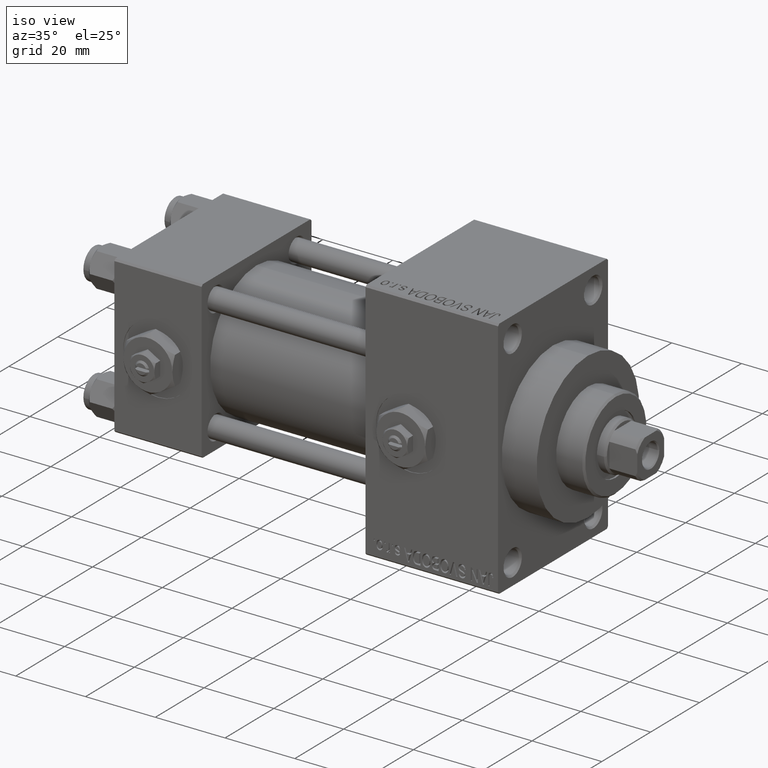
[diagram: clean part render]
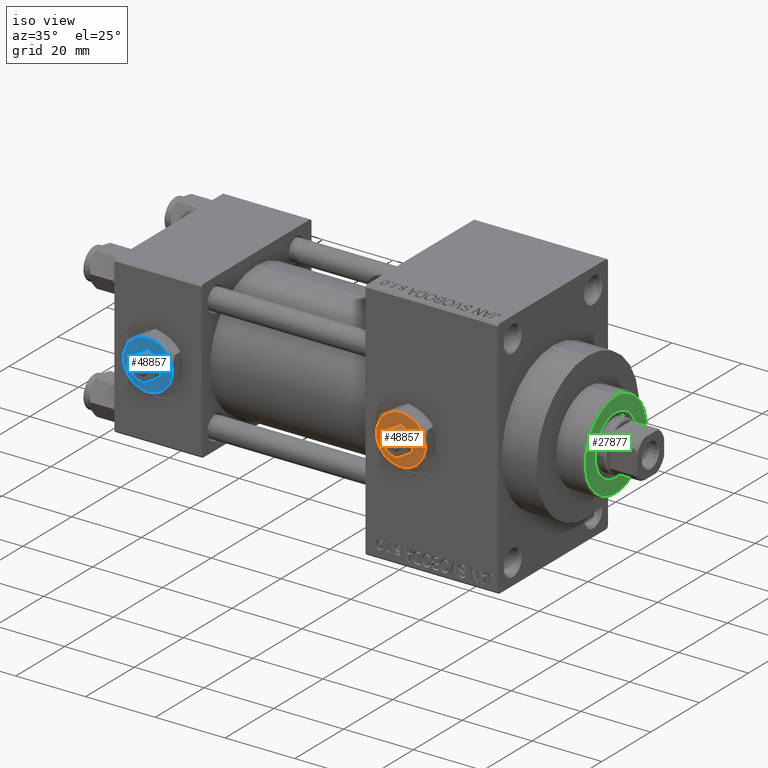
[diagram: same view with three faces highlighted in distinct colors, each labeled with its STEP entity id]
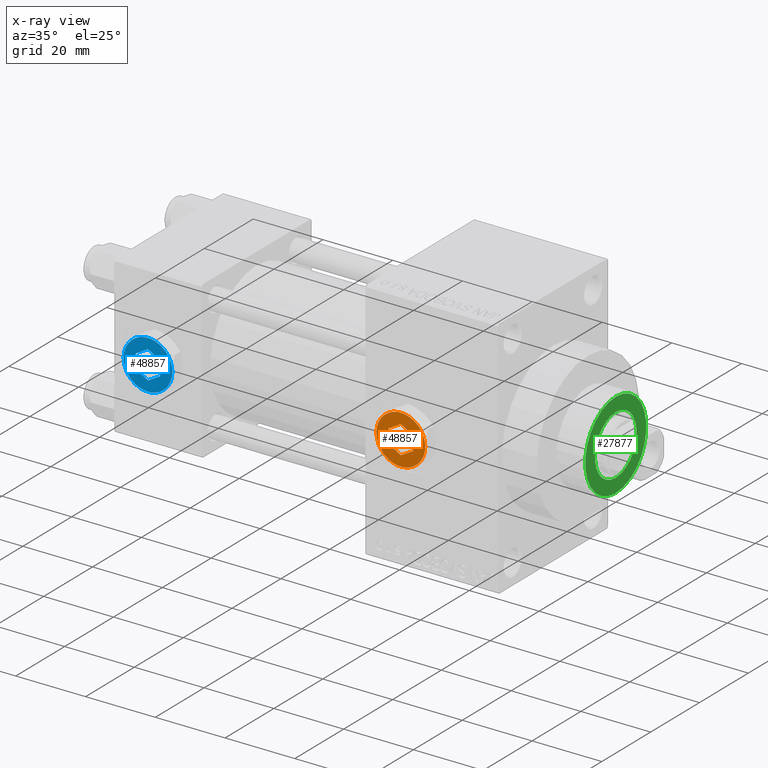
[diagram: x-ray of the same camera — body ghosted, the three highlighted faces saturated]
A machine part, iso view with three faces highlighted in distinct colors.
The next image is the same camera in x-ray (body ghosted, the three faces saturated) — at least one of them is partly hidden behind the body in this view.
Their STEP definitions:

[orange] entity #48857 — the highlighted planar face has unit normal (0, -1, -0).
#231 = AXIS2_PLACEMENT_3D ( 'NONE', #42240, #45730, #19160 ) ;
#469 = VERTEX_POINT ( 'NONE', #14090 ) ;
#1294 = EDGE_CURVE ( 'NONE', #11900, #39975, #45647, .T. ) ;
#2386 = DIRECTION ( 'NONE',  ( 1.000000000000000000, 0.000000000000000000, 0.000000000000000000 ) ) ;
#2759 = DIRECTION ( 'NONE',  ( 1.073081856240828196E-16, -1.000000000000000000, 0.000000000000000000 ) ) ;
#2985 = AXIS2_PLACEMENT_3D ( 'NONE', #39471, #35750, #13144 ) ;
#3102 = ORIENTED_EDGE ( 'NONE', *, *, #27133, .F. ) ;
#3390 = CIRCLE ( 'NONE', #231, 7.000000000000001776 ) ;
#3491 = VECTOR ( 'NONE', #48503, 1000.000000000000227 ) ;
#4298 = EDGE_CURVE ( 'NONE', #12407, #14101, #15368, .T. ) ;
#4571 = AXIS2_PLACEMENT_3D ( 'NONE', #10309, #24465, #2386 ) ;
#4950 = DIRECTION ( 'NONE',  ( 0.000000000000000000, 0.000000000000000000, 1.000000000000000000 ) ) ;
#5751 = CARTESIAN_POINT ( 'NONE',  ( 0.000000000000000000, 0.000000000000000000, 4.299999999999999822 ) ) ;
#5972 = CARTESIAN_POINT ( 'NONE',  ( -3.499999999999999112, 2.020725942163690725, 4.299999999999999822 ) ) ;
#6157 = VECTOR ( 'NONE', #44435, 1000.000000000000000 ) ;
#6342 = ORIENTED_EDGE ( 'NONE', *, *, #29040, .T. ) ;
#6915 = EDGE_CURVE ( 'NONE', #14101, #7727, #37475, .T. ) ;
#7261 = CARTESIAN_POINT ( 'NONE',  ( 3.499999999999998224, 2.020725942163691613, 4.299999999999999822 ) ) ;
#7491 = CIRCLE ( 'NONE', #47113, 7.000000000000001776 ) ;
#7568 = CARTESIAN_POINT ( 'NONE',  ( -2.443687887572056883E-16, -4.041451884327378785, 4.299999999999999822 ) ) ;
#7727 = VERTEX_POINT ( 'NONE', #14144 ) ;
#8822 = ORIENTED_EDGE ( 'NONE', *, *, #32577, .F. ) ;
#10014 = VECTOR ( 'NONE', #2759, 1000.000000000000000 ) ;
#10309 = CARTESIAN_POINT ( 'NONE',  ( 0.000000000000000000, 0.000000000000000000, 4.299999999999999822 ) ) ;
#10326 = CARTESIAN_POINT ( 'NONE',  ( 0.000000000000000000, 4.041451884327380562, 4.299999999999999822 ) ) ;
#10330 = VERTEX_POINT ( 'NONE', #48762 ) ;
#11467 = CARTESIAN_POINT ( 'NONE',  ( 0.000000000000000000, 0.000000000000000000, 4.299999999999999822 ) ) ;
#11900 = VERTEX_POINT ( 'NONE', #48036 ) ;
#12102 = CARTESIAN_POINT ( 'NONE',  ( -3.499999999999998668, -2.020725942163689837, 4.299999999999999822 ) ) ;
#12407 = VERTEX_POINT ( 'NONE', #7568 ) ;
#12875 = AXIS2_PLACEMENT_3D ( 'NONE', #11467, #18928, #42000 ) ;
#13144 = DIRECTION ( 'NONE',  ( 1.000000000000000000, 0.000000000000000000, 0.000000000000000000 ) ) ;
#13501 = DIRECTION ( 'NONE',  ( 1.000000000000000000, 0.000000000000000000, -0.000000000000000000 ) ) ;
#13636 = LINE ( 'NONE', #5972, #10014 ) ;
#14090 = CARTESIAN_POINT ( 'NONE',  ( 3.500000000000000888, -6.062177826491073951, 4.299999999999999822 ) ) ;
#14101 = VERTEX_POINT ( 'NONE', #24457 ) ;
#14144 = CARTESIAN_POINT ( 'NONE',  ( 3.499999999999998224, 2.020725942163691613, 4.299999999999999822 ) ) ;
#14519 = VECTOR ( 'NONE', #22386, 1000.000000000000114 ) ;
#14548 = EDGE_CURVE ( 'NONE', #39975, #45534, #32690, .T. ) ;
#14622 = ORIENTED_EDGE ( 'NONE', *, *, #4298, .F. ) ;
#15368 = LINE ( 'NONE', #19588, #41196 ) ;
#16406 = EDGE_CURVE ( 'NONE', #7727, #25855, #41262, .T. ) ;
#18502 = CARTESIAN_POINT ( 'NONE',  ( -7.000000000000001776, -2.253471898105739040E-15, 4.299999999999999822 ) ) ;
#18835 = EDGE_LOOP ( 'NONE', ( #8822, #43339, #37668, #14622, #20033, #3102 ) ) ;
#18928 = DIRECTION ( 'NONE',  ( 0.000000000000000000, 0.000000000000000000, 1.000000000000000000 ) ) ;
#18935 = CARTESIAN_POINT ( 'NONE',  ( 6.999999999999994671, 3.004629197474313724E-15, 4.299999999999999822 ) ) ;
#19160 = DIRECTION ( 'NONE',  ( 1.000000000000000000, 0.000000000000000000, 0.000000000000000000 ) ) ;
#19588 = CARTESIAN_POINT ( 'NONE',  ( -2.443687887572056883E-16, -4.041451884327378785, 4.299999999999999822 ) ) ;
#20033 = ORIENTED_EDGE ( 'NONE', *, *, #33689, .F. ) ;
#20087 = DIRECTION ( 'NONE',  ( 1.000000000000000000, 0.000000000000000000, 0.000000000000000000 ) ) ;
#21200 = CIRCLE ( 'NONE', #2985, 7.000000000000001776 ) ;
#21213 = FACE_OUTER_BOUND ( 'NONE', #31731, .T. ) ;
#22125 = EDGE_CURVE ( 'NONE', #10330, #469, #7491, .T. ) ;
#22386 = DIRECTION ( 'NONE',  ( -0.8660254037844387076, 0.4999999999999998335, 0.000000000000000000 ) ) ;
#24457 = CARTESIAN_POINT ( 'NONE',  ( 3.500000000000000000, -2.020725942163690281, 4.299999999999999822 ) ) ;
#24465 = DIRECTION ( 'NONE',  ( 0.000000000000000000, 0.000000000000000000, 1.000000000000000000 ) ) ;
#25855 = VERTEX_POINT ( 'NONE', #45406 ) ;
#26827 = AXIS2_PLACEMENT_3D ( 'NONE', #44558, #44314, #13501 ) ;
#27133 = EDGE_CURVE ( 'NONE', #31032, #33228, #13636, .T. ) ;
#29040 = EDGE_CURVE ( 'NONE', #41817, #11900, #21200, .T. ) ;
#29174 = DIRECTION ( 'NONE',  ( -0.8660254037844385966, -0.4999999999999998890, 0.000000000000000000 ) ) ;
#29978 = CARTESIAN_POINT ( 'NONE',  ( -3.500000000000000888, 6.062177826491073063, 4.299999999999999822 ) ) ;
#30506 = DIRECTION ( 'NONE',  ( 0.8660254037844388186, 0.4999999999999996669, 0.000000000000000000 ) ) ;
#30745 = EDGE_CURVE ( 'NONE', #469, #41817, #3390, .T. ) ;
#31032 = VERTEX_POINT ( 'NONE', #31478 ) ;
#31478 = CARTESIAN_POINT ( 'NONE',  ( -3.499999999999999112, 2.020725942163690725, 4.299999999999999822 ) ) ;
#31731 = EDGE_LOOP ( 'NONE', ( #35730, #6342, #35634, #45073, #42199, #38317 ) ) ;
#32577 = EDGE_CURVE ( 'NONE', #25855, #31032, #32660, .T. ) ;
#32660 = LINE ( 'NONE', #10326, #33556 ) ;
#32690 = CIRCLE ( 'NONE', #12875, 7.000000000000001776 ) ;
#33134 = FACE_BOUND ( 'NONE', #18835, .T. ) ;
#33228 = VERTEX_POINT ( 'NONE', #12102 ) ;
#33556 = VECTOR ( 'NONE', #29174, 1000.000000000000227 ) ;
#33689 = EDGE_CURVE ( 'NONE', #33228, #12407, #44291, .T. ) ;
#35549 = DIRECTION ( 'NONE',  ( 0.000000000000000000, 0.000000000000000000, 1.000000000000000000 ) ) ;
#35634 = ORIENTED_EDGE ( 'NONE', *, *, #1294, .T. ) ;
#35730 = ORIENTED_EDGE ( 'NONE', *, *, #30745, .T. ) ;
#35750 = DIRECTION ( 'NONE',  ( 0.000000000000000000, 0.000000000000000000, 1.000000000000000000 ) ) ;
#37475 = LINE ( 'NONE', #44189, #6157 ) ;
#37668 = ORIENTED_EDGE ( 'NONE', *, *, #6915, .F. ) ;
#38317 = ORIENTED_EDGE ( 'NONE', *, *, #22125, .T. ) ;
#39471 = CARTESIAN_POINT ( 'NONE',  ( 0.000000000000000000, 0.000000000000000000, 4.299999999999999822 ) ) ;
#39975 = VERTEX_POINT ( 'NONE', #29978 ) ;
#40555 = CARTESIAN_POINT ( 'NONE',  ( -3.499999999999998668, -2.020725942163689837, 4.299999999999999822 ) ) ;
#40829 = PLANE ( 'NONE',  #26827 ) ;
#41196 = VECTOR ( 'NONE', #30506, 1000.000000000000114 ) ;
#41262 = LINE ( 'NONE', #7261, #14519 ) ;
#41817 = VERTEX_POINT ( 'NONE', #18935 ) ;
#41832 = AXIS2_PLACEMENT_3D ( 'NONE', #42690, #4950, #20087 ) ;
#42000 = DIRECTION ( 'NONE',  ( 1.000000000000000000, 0.000000000000000000, 0.000000000000000000 ) ) ;
#42199 = ORIENTED_EDGE ( 'NONE', *, *, #45497, .T. ) ;
#42240 = CARTESIAN_POINT ( 'NONE',  ( 0.000000000000000000, 0.000000000000000000, 4.299999999999999822 ) ) ;
#42522 = DIRECTION ( 'NONE',  ( 1.000000000000000000, 0.000000000000000000, 0.000000000000000000 ) ) ;
#42690 = CARTESIAN_POINT ( 'NONE',  ( 0.000000000000000000, 0.000000000000000000, 4.299999999999999822 ) ) ;
#43339 = ORIENTED_EDGE ( 'NONE', *, *, #16406, .F. ) ;
#44189 = CARTESIAN_POINT ( 'NONE',  ( 3.499999999999999556, -2.020725942163690281, 4.299999999999999822 ) ) ;
#44291 = LINE ( 'NONE', #40555, #3491 ) ;
#44314 = DIRECTION ( 'NONE',  ( 0.000000000000000000, 0.000000000000000000, 1.000000000000000000 ) ) ;
#44435 = DIRECTION ( 'NONE',  ( -3.219245568722483357E-16, 1.000000000000000000, 0.000000000000000000 ) ) ;
#44558 = CARTESIAN_POINT ( 'NONE',  ( 0.000000000000000000, 0.000000000000000000, 4.299999999999999822 ) ) ;
#45073 = ORIENTED_EDGE ( 'NONE', *, *, #14548, .T. ) ;
#45406 = CARTESIAN_POINT ( 'NONE',  ( 0.000000000000000000, 4.041451884327380562, 4.299999999999999822 ) ) ;
#45497 = EDGE_CURVE ( 'NONE', #45534, #10330, #48944, .T. ) ;
#45534 = VERTEX_POINT ( 'NONE', #18502 ) ;
#45647 = CIRCLE ( 'NONE', #41832, 7.000000000000001776 ) ;
#45730 = DIRECTION ( 'NONE',  ( 0.000000000000000000, 0.000000000000000000, 1.000000000000000000 ) ) ;
#47113 = AXIS2_PLACEMENT_3D ( 'NONE', #5751, #35549, #42522 ) ;
#48036 = CARTESIAN_POINT ( 'NONE',  ( 3.500000000000000444, 6.062177826491073063, 4.299999999999999822 ) ) ;
#48503 = DIRECTION ( 'NONE',  ( 0.8660254037844385966, -0.4999999999999998890, 0.000000000000000000 ) ) ;
#48762 = CARTESIAN_POINT ( 'NONE',  ( -3.500000000000000000, -6.062177826491073063, 4.299999999999999822 ) ) ;
#48857 = ADVANCED_FACE ( 'NONE', ( #21213, #33134 ), #40829, .T. ) ;
#48944 = CIRCLE ( 'NONE', #4571, 7.000000000000001776 ) ;

[blue] entity #48857 — the highlighted planar face has unit normal (0, -1, -0).
#231 = AXIS2_PLACEMENT_3D ( 'NONE', #42240, #45730, #19160 ) ;
#469 = VERTEX_POINT ( 'NONE', #14090 ) ;
#1294 = EDGE_CURVE ( 'NONE', #11900, #39975, #45647, .T. ) ;
#2386 = DIRECTION ( 'NONE',  ( 1.000000000000000000, 0.000000000000000000, 0.000000000000000000 ) ) ;
#2759 = DIRECTION ( 'NONE',  ( 1.073081856240828196E-16, -1.000000000000000000, 0.000000000000000000 ) ) ;
#2985 = AXIS2_PLACEMENT_3D ( 'NONE', #39471, #35750, #13144 ) ;
#3102 = ORIENTED_EDGE ( 'NONE', *, *, #27133, .F. ) ;
#3390 = CIRCLE ( 'NONE', #231, 7.000000000000001776 ) ;
#3491 = VECTOR ( 'NONE', #48503, 1000.000000000000227 ) ;
#4298 = EDGE_CURVE ( 'NONE', #12407, #14101, #15368, .T. ) ;
#4571 = AXIS2_PLACEMENT_3D ( 'NONE', #10309, #24465, #2386 ) ;
#4950 = DIRECTION ( 'NONE',  ( 0.000000000000000000, 0.000000000000000000, 1.000000000000000000 ) ) ;
#5751 = CARTESIAN_POINT ( 'NONE',  ( 0.000000000000000000, 0.000000000000000000, 4.299999999999999822 ) ) ;
#5972 = CARTESIAN_POINT ( 'NONE',  ( -3.499999999999999112, 2.020725942163690725, 4.299999999999999822 ) ) ;
#6157 = VECTOR ( 'NONE', #44435, 1000.000000000000000 ) ;
#6342 = ORIENTED_EDGE ( 'NONE', *, *, #29040, .T. ) ;
#6915 = EDGE_CURVE ( 'NONE', #14101, #7727, #37475, .T. ) ;
#7261 = CARTESIAN_POINT ( 'NONE',  ( 3.499999999999998224, 2.020725942163691613, 4.299999999999999822 ) ) ;
#7491 = CIRCLE ( 'NONE', #47113, 7.000000000000001776 ) ;
#7568 = CARTESIAN_POINT ( 'NONE',  ( -2.443687887572056883E-16, -4.041451884327378785, 4.299999999999999822 ) ) ;
#7727 = VERTEX_POINT ( 'NONE', #14144 ) ;
#8822 = ORIENTED_EDGE ( 'NONE', *, *, #32577, .F. ) ;
#10014 = VECTOR ( 'NONE', #2759, 1000.000000000000000 ) ;
#10309 = CARTESIAN_POINT ( 'NONE',  ( 0.000000000000000000, 0.000000000000000000, 4.299999999999999822 ) ) ;
#10326 = CARTESIAN_POINT ( 'NONE',  ( 0.000000000000000000, 4.041451884327380562, 4.299999999999999822 ) ) ;
#10330 = VERTEX_POINT ( 'NONE', #48762 ) ;
#11467 = CARTESIAN_POINT ( 'NONE',  ( 0.000000000000000000, 0.000000000000000000, 4.299999999999999822 ) ) ;
#11900 = VERTEX_POINT ( 'NONE', #48036 ) ;
#12102 = CARTESIAN_POINT ( 'NONE',  ( -3.499999999999998668, -2.020725942163689837, 4.299999999999999822 ) ) ;
#12407 = VERTEX_POINT ( 'NONE', #7568 ) ;
#12875 = AXIS2_PLACEMENT_3D ( 'NONE', #11467, #18928, #42000 ) ;
#13144 = DIRECTION ( 'NONE',  ( 1.000000000000000000, 0.000000000000000000, 0.000000000000000000 ) ) ;
#13501 = DIRECTION ( 'NONE',  ( 1.000000000000000000, 0.000000000000000000, -0.000000000000000000 ) ) ;
#13636 = LINE ( 'NONE', #5972, #10014 ) ;
#14090 = CARTESIAN_POINT ( 'NONE',  ( 3.500000000000000888, -6.062177826491073951, 4.299999999999999822 ) ) ;
#14101 = VERTEX_POINT ( 'NONE', #24457 ) ;
#14144 = CARTESIAN_POINT ( 'NONE',  ( 3.499999999999998224, 2.020725942163691613, 4.299999999999999822 ) ) ;
#14519 = VECTOR ( 'NONE', #22386, 1000.000000000000114 ) ;
#14548 = EDGE_CURVE ( 'NONE', #39975, #45534, #32690, .T. ) ;
#14622 = ORIENTED_EDGE ( 'NONE', *, *, #4298, .F. ) ;
#15368 = LINE ( 'NONE', #19588, #41196 ) ;
#16406 = EDGE_CURVE ( 'NONE', #7727, #25855, #41262, .T. ) ;
#18502 = CARTESIAN_POINT ( 'NONE',  ( -7.000000000000001776, -2.253471898105739040E-15, 4.299999999999999822 ) ) ;
#18835 = EDGE_LOOP ( 'NONE', ( #8822, #43339, #37668, #14622, #20033, #3102 ) ) ;
#18928 = DIRECTION ( 'NONE',  ( 0.000000000000000000, 0.000000000000000000, 1.000000000000000000 ) ) ;
#18935 = CARTESIAN_POINT ( 'NONE',  ( 6.999999999999994671, 3.004629197474313724E-15, 4.299999999999999822 ) ) ;
#19160 = DIRECTION ( 'NONE',  ( 1.000000000000000000, 0.000000000000000000, 0.000000000000000000 ) ) ;
#19588 = CARTESIAN_POINT ( 'NONE',  ( -2.443687887572056883E-16, -4.041451884327378785, 4.299999999999999822 ) ) ;
#20033 = ORIENTED_EDGE ( 'NONE', *, *, #33689, .F. ) ;
#20087 = DIRECTION ( 'NONE',  ( 1.000000000000000000, 0.000000000000000000, 0.000000000000000000 ) ) ;
#21200 = CIRCLE ( 'NONE', #2985, 7.000000000000001776 ) ;
#21213 = FACE_OUTER_BOUND ( 'NONE', #31731, .T. ) ;
#22125 = EDGE_CURVE ( 'NONE', #10330, #469, #7491, .T. ) ;
#22386 = DIRECTION ( 'NONE',  ( -0.8660254037844387076, 0.4999999999999998335, 0.000000000000000000 ) ) ;
#24457 = CARTESIAN_POINT ( 'NONE',  ( 3.500000000000000000, -2.020725942163690281, 4.299999999999999822 ) ) ;
#24465 = DIRECTION ( 'NONE',  ( 0.000000000000000000, 0.000000000000000000, 1.000000000000000000 ) ) ;
#25855 = VERTEX_POINT ( 'NONE', #45406 ) ;
#26827 = AXIS2_PLACEMENT_3D ( 'NONE', #44558, #44314, #13501 ) ;
#27133 = EDGE_CURVE ( 'NONE', #31032, #33228, #13636, .T. ) ;
#29040 = EDGE_CURVE ( 'NONE', #41817, #11900, #21200, .T. ) ;
#29174 = DIRECTION ( 'NONE',  ( -0.8660254037844385966, -0.4999999999999998890, 0.000000000000000000 ) ) ;
#29978 = CARTESIAN_POINT ( 'NONE',  ( -3.500000000000000888, 6.062177826491073063, 4.299999999999999822 ) ) ;
#30506 = DIRECTION ( 'NONE',  ( 0.8660254037844388186, 0.4999999999999996669, 0.000000000000000000 ) ) ;
#30745 = EDGE_CURVE ( 'NONE', #469, #41817, #3390, .T. ) ;
#31032 = VERTEX_POINT ( 'NONE', #31478 ) ;
#31478 = CARTESIAN_POINT ( 'NONE',  ( -3.499999999999999112, 2.020725942163690725, 4.299999999999999822 ) ) ;
#31731 = EDGE_LOOP ( 'NONE', ( #35730, #6342, #35634, #45073, #42199, #38317 ) ) ;
#32577 = EDGE_CURVE ( 'NONE', #25855, #31032, #32660, .T. ) ;
#32660 = LINE ( 'NONE', #10326, #33556 ) ;
#32690 = CIRCLE ( 'NONE', #12875, 7.000000000000001776 ) ;
#33134 = FACE_BOUND ( 'NONE', #18835, .T. ) ;
#33228 = VERTEX_POINT ( 'NONE', #12102 ) ;
#33556 = VECTOR ( 'NONE', #29174, 1000.000000000000227 ) ;
#33689 = EDGE_CURVE ( 'NONE', #33228, #12407, #44291, .T. ) ;
#35549 = DIRECTION ( 'NONE',  ( 0.000000000000000000, 0.000000000000000000, 1.000000000000000000 ) ) ;
#35634 = ORIENTED_EDGE ( 'NONE', *, *, #1294, .T. ) ;
#35730 = ORIENTED_EDGE ( 'NONE', *, *, #30745, .T. ) ;
#35750 = DIRECTION ( 'NONE',  ( 0.000000000000000000, 0.000000000000000000, 1.000000000000000000 ) ) ;
#37475 = LINE ( 'NONE', #44189, #6157 ) ;
#37668 = ORIENTED_EDGE ( 'NONE', *, *, #6915, .F. ) ;
#38317 = ORIENTED_EDGE ( 'NONE', *, *, #22125, .T. ) ;
#39471 = CARTESIAN_POINT ( 'NONE',  ( 0.000000000000000000, 0.000000000000000000, 4.299999999999999822 ) ) ;
#39975 = VERTEX_POINT ( 'NONE', #29978 ) ;
#40555 = CARTESIAN_POINT ( 'NONE',  ( -3.499999999999998668, -2.020725942163689837, 4.299999999999999822 ) ) ;
#40829 = PLANE ( 'NONE',  #26827 ) ;
#41196 = VECTOR ( 'NONE', #30506, 1000.000000000000114 ) ;
#41262 = LINE ( 'NONE', #7261, #14519 ) ;
#41817 = VERTEX_POINT ( 'NONE', #18935 ) ;
#41832 = AXIS2_PLACEMENT_3D ( 'NONE', #42690, #4950, #20087 ) ;
#42000 = DIRECTION ( 'NONE',  ( 1.000000000000000000, 0.000000000000000000, 0.000000000000000000 ) ) ;
#42199 = ORIENTED_EDGE ( 'NONE', *, *, #45497, .T. ) ;
#42240 = CARTESIAN_POINT ( 'NONE',  ( 0.000000000000000000, 0.000000000000000000, 4.299999999999999822 ) ) ;
#42522 = DIRECTION ( 'NONE',  ( 1.000000000000000000, 0.000000000000000000, 0.000000000000000000 ) ) ;
#42690 = CARTESIAN_POINT ( 'NONE',  ( 0.000000000000000000, 0.000000000000000000, 4.299999999999999822 ) ) ;
#43339 = ORIENTED_EDGE ( 'NONE', *, *, #16406, .F. ) ;
#44189 = CARTESIAN_POINT ( 'NONE',  ( 3.499999999999999556, -2.020725942163690281, 4.299999999999999822 ) ) ;
#44291 = LINE ( 'NONE', #40555, #3491 ) ;
#44314 = DIRECTION ( 'NONE',  ( 0.000000000000000000, 0.000000000000000000, 1.000000000000000000 ) ) ;
#44435 = DIRECTION ( 'NONE',  ( -3.219245568722483357E-16, 1.000000000000000000, 0.000000000000000000 ) ) ;
#44558 = CARTESIAN_POINT ( 'NONE',  ( 0.000000000000000000, 0.000000000000000000, 4.299999999999999822 ) ) ;
#45073 = ORIENTED_EDGE ( 'NONE', *, *, #14548, .T. ) ;
#45406 = CARTESIAN_POINT ( 'NONE',  ( 0.000000000000000000, 4.041451884327380562, 4.299999999999999822 ) ) ;
#45497 = EDGE_CURVE ( 'NONE', #45534, #10330, #48944, .T. ) ;
#45534 = VERTEX_POINT ( 'NONE', #18502 ) ;
#45647 = CIRCLE ( 'NONE', #41832, 7.000000000000001776 ) ;
#45730 = DIRECTION ( 'NONE',  ( 0.000000000000000000, 0.000000000000000000, 1.000000000000000000 ) ) ;
#47113 = AXIS2_PLACEMENT_3D ( 'NONE', #5751, #35549, #42522 ) ;
#48036 = CARTESIAN_POINT ( 'NONE',  ( 3.500000000000000444, 6.062177826491073063, 4.299999999999999822 ) ) ;
#48503 = DIRECTION ( 'NONE',  ( 0.8660254037844385966, -0.4999999999999998890, 0.000000000000000000 ) ) ;
#48762 = CARTESIAN_POINT ( 'NONE',  ( -3.500000000000000000, -6.062177826491073063, 4.299999999999999822 ) ) ;
#48857 = ADVANCED_FACE ( 'NONE', ( #21213, #33134 ), #40829, .T. ) ;
#48944 = CIRCLE ( 'NONE', #4571, 7.000000000000001776 ) ;

[green] entity #27877 — the highlighted planar face has unit normal (1, -0, -0).
#1482 = ORIENTED_EDGE ( 'NONE', *, *, #28132, .F. ) ;
#4345 = DIRECTION ( 'NONE',  ( 0.000000000000000000, 0.000000000000000000, 1.000000000000000000 ) ) ;
#5224 = CARTESIAN_POINT ( 'NONE',  ( 8.500000000000000000, 0.000000000000000000, 51.25999999999999801 ) ) ;
#7530 = EDGE_LOOP ( 'NONE', ( #18099, #10069 ) ) ;
#7764 = DIRECTION ( 'NONE',  ( 1.000000000000000000, 0.000000000000000000, 0.000000000000000000 ) ) ;
#10069 = ORIENTED_EDGE ( 'NONE', *, *, #26762, .T. ) ;
#10133 = VERTEX_POINT ( 'NONE', #14479 ) ;
#10555 = DIRECTION ( 'NONE',  ( 1.000000000000000000, 0.000000000000000000, -0.000000000000000000 ) ) ;
#10804 = CIRCLE ( 'NONE', #29820, 12.49999999999998401 ) ;
#11519 = CARTESIAN_POINT ( 'NONE',  ( 0.000000000000000000, 0.000000000000000000, 51.25999999999999801 ) ) ;
#11655 = VERTEX_POINT ( 'NONE', #5224 ) ;
#11712 = AXIS2_PLACEMENT_3D ( 'NONE', #40391, #17312, #43389 ) ;
#12009 = VERTEX_POINT ( 'NONE', #28686 ) ;
#12022 = DIRECTION ( 'NONE',  ( 1.000000000000000000, 0.000000000000000000, 0.000000000000000000 ) ) ;
#13164 = CARTESIAN_POINT ( 'NONE',  ( 12.49999999999998401, 1.561424668912874322E-15, 51.25999999999999801 ) ) ;
#14479 = CARTESIAN_POINT ( 'NONE',  ( -12.49999999999998401, 0.000000000000000000, 51.25999999999999801 ) ) ;
#14778 = CARTESIAN_POINT ( 'NONE',  ( 0.000000000000000000, 0.000000000000000000, 51.25999999999999801 ) ) ;
#15237 = DIRECTION ( 'NONE',  ( 1.000000000000000000, 0.000000000000000000, 0.000000000000000000 ) ) ;
#15254 = PLANE ( 'NONE',  #28275 ) ;
#15808 = EDGE_LOOP ( 'NONE', ( #34389, #1482 ) ) ;
#17312 = DIRECTION ( 'NONE',  ( 0.000000000000000000, 0.000000000000000000, 1.000000000000000000 ) ) ;
#18099 = ORIENTED_EDGE ( 'NONE', *, *, #46107, .T. ) ;
#21199 = CIRCLE ( 'NONE', #11712, 12.49999999999998401 ) ;
#22213 = DIRECTION ( 'NONE',  ( 0.000000000000000000, 0.000000000000000000, 1.000000000000000000 ) ) ;
#22890 = DIRECTION ( 'NONE',  ( 0.000000000000000000, 0.000000000000000000, 1.000000000000000000 ) ) ;
#22954 = FACE_BOUND ( 'NONE', #15808, .T. ) ;
#25696 = DIRECTION ( 'NONE',  ( 0.000000000000000000, 0.000000000000000000, 1.000000000000000000 ) ) ;
#26675 = FACE_OUTER_BOUND ( 'NONE', #7530, .T. ) ;
#26762 = EDGE_CURVE ( 'NONE', #45900, #10133, #10804, .T. ) ;
#27539 = AXIS2_PLACEMENT_3D ( 'NONE', #11519, #22213, #15237 ) ;
#27877 = ADVANCED_FACE ( 'NONE', ( #22954, #26675 ), #15254, .T. ) ;
#28132 = EDGE_CURVE ( 'NONE', #12009, #11655, #37810, .T. ) ;
#28275 = AXIS2_PLACEMENT_3D ( 'NONE', #14778, #25696, #10555 ) ;
#28686 = CARTESIAN_POINT ( 'NONE',  ( -8.500000000000000000, 1.040949779275250140E-15, 51.25999999999999801 ) ) ;
#29108 = EDGE_CURVE ( 'NONE', #11655, #12009, #37064, .T. ) ;
#29820 = AXIS2_PLACEMENT_3D ( 'NONE', #37795, #22890, #7764 ) ;
#34389 = ORIENTED_EDGE ( 'NONE', *, *, #29108, .F. ) ;
#36231 = AXIS2_PLACEMENT_3D ( 'NONE', #38337, #4345, #12022 ) ;
#37064 = CIRCLE ( 'NONE', #27539, 8.500000000000000000 ) ;
#37795 = CARTESIAN_POINT ( 'NONE',  ( 0.000000000000000000, 0.000000000000000000, 51.25999999999999801 ) ) ;
#37810 = CIRCLE ( 'NONE', #36231, 8.500000000000000000 ) ;
#38337 = CARTESIAN_POINT ( 'NONE',  ( 0.000000000000000000, 0.000000000000000000, 51.25999999999999801 ) ) ;
#40391 = CARTESIAN_POINT ( 'NONE',  ( 0.000000000000000000, 0.000000000000000000, 51.25999999999999801 ) ) ;
#43389 = DIRECTION ( 'NONE',  ( 1.000000000000000000, 0.000000000000000000, 0.000000000000000000 ) ) ;
#45900 = VERTEX_POINT ( 'NONE', #13164 ) ;
#46107 = EDGE_CURVE ( 'NONE', #10133, #45900, #21199, .T. ) ;